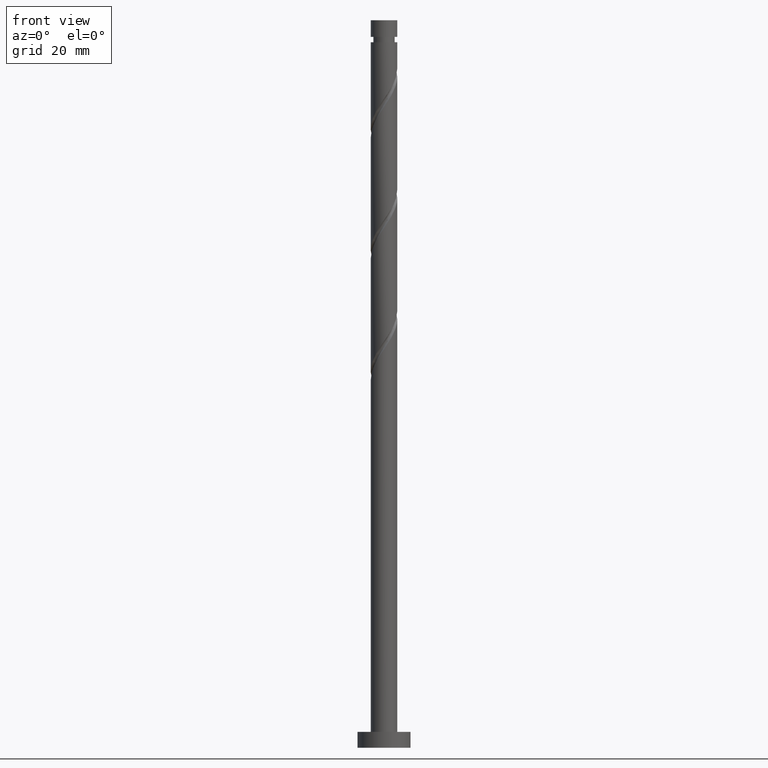
[diagram: clean part render]
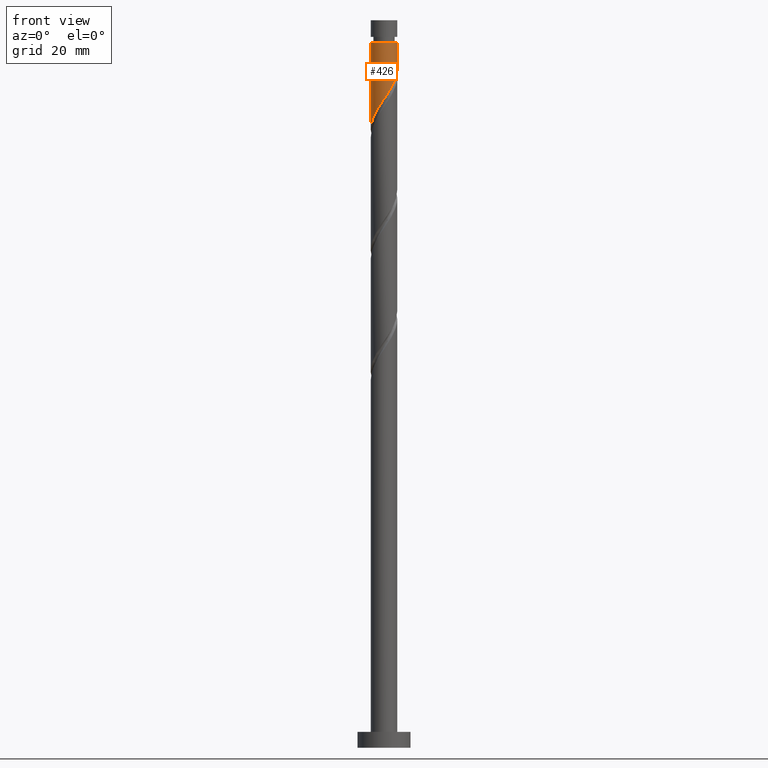
[diagram: same view with one face highlighted and labeled with its STEP entity id]
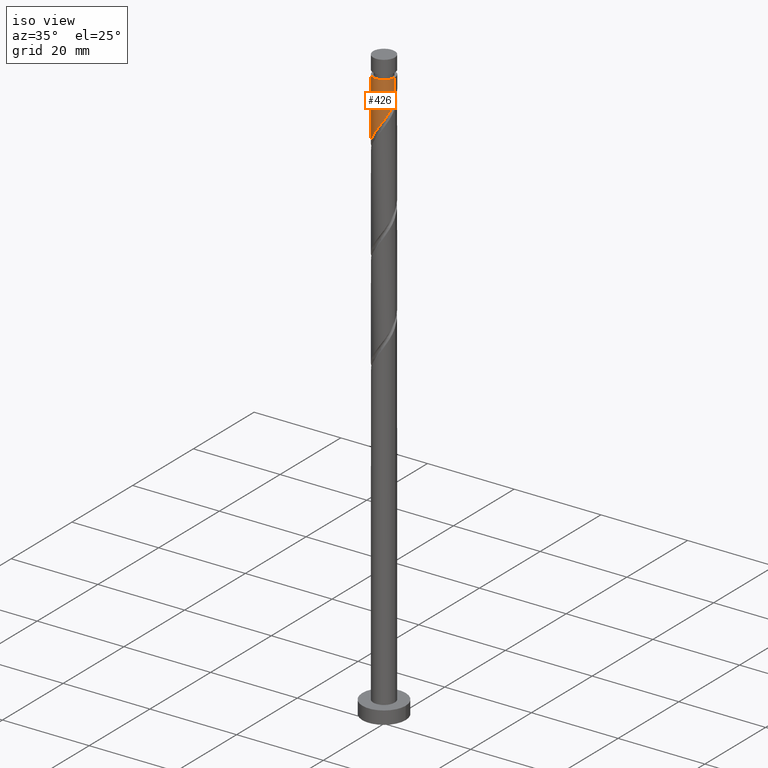
[diagram: same view with one face highlighted and labeled with its STEP entity id]
A machine part, front view. The second image highlights one B-rep face of the part: STEP entity #426.
A second angle (iso view) of the same face is appended — the face is thin or edge-on in the first view.
In plain terms, the highlighted cylindrical surface (edge-blend (fillet) strip) has radius 2.5 mm, axis along (-0, -0, -1).
Its self-contained STEP definition (entity closure, byte-faithful):
#71 = AXIS2_PLACEMENT_3D ( 'NONE', #365, #1051, #157 ) ;
#77 = CARTESIAN_POINT ( 'NONE',  ( 2.499999999999999112, 6.147172141114361151E-16, 128.3239659710337719 ) ) ;
#82 = CARTESIAN_POINT ( 'NONE',  ( -2.499999999999999112, -8.995861669923457122E-16, 116.8672993043671369 ) ) ;
#106 = CARTESIAN_POINT ( 'NONE',  ( -1.230236279064653937, -2.176354451295364978, 120.7187896538070930 ) ) ;
#108 = DIRECTION ( 'NONE',  ( -1.000000000000000000, 0.000000000000000000, 0.000000000000000000 ) ) ;
#125 =( BOUNDED_CURVE ( )  B_SPLINE_CURVE ( 2, ( #1196, #454, #849, #318, #937, #1418, #1546, #1326, #230, #478, #947, #463, #837, #973, #106, #721, #328, #712, #212, #1074, #583, #1081, #82 ),
 .UNSPECIFIED., .F., .T. ) 
 B_SPLINE_CURVE_WITH_KNOTS ( ( 3, 2, 2, 2, 2, 2, 2, 2, 2, 2, 2, 3 ),
 ( 0.3045322023138550827, 0.3125000000000000000, 0.3250000000000000111, 0.3375000000000000222, 0.3499999999999999778, 0.3624999999999999889, 0.3750000000000000000, 0.3875000000000000111, 0.4000000000000000222, 0.4124999999999999778, 0.4249999999999999889, 0.4295322023138550271 ),
 .UNSPECIFIED. ) 
 CURVE ( )  GEOMETRIC_REPRESENTATION_ITEM ( )  RATIONAL_B_SPLINE_CURVE ( ( 0.9039174447099376231, 0.9019565955404669211, 0.9090909090909153889, 0.8978984914501313419, 0.9090909090909153889, 0.8978984914501313419, 0.9090909090909153889, 0.8978984914501313419, 0.9090909090909153889, 0.8978984914501313419, 0.9090909090909153889, 0.8978984914501313419, 0.9090909090909153889, 0.8978984914501313419, 0.9090909090909153889, 0.8978984914501313419, 0.9090909090909153889, 0.8978984914501313419, 0.9090909090909153889, 0.8978984914501313419, 0.9090909090909153889, 0.9050328050005800318, 0.9039174447099378451 ) ) 
 REPRESENTATION_ITEM ( '' )  );
#157 = DIRECTION ( 'NONE',  ( -1.000000000000000000, 0.000000000000000000, 0.000000000000000000 ) ) ;
#212 = CARTESIAN_POINT ( 'NONE',  ( -2.274511107092398010, -1.037592995212142544, 118.4274563204737660 ) ) ;
#230 = CARTESIAN_POINT ( 'NONE',  ( 1.037592995212142544, -2.274511107092398010, 124.1557896538071049 ) ) ;
#280 = ORIENTED_EDGE ( 'NONE', *, *, #1290, .F. ) ;
#318 = CARTESIAN_POINT ( 'NONE',  ( 2.371204735821960785, -0.8855355973484247967, 127.0199563204738098 ) ) ;
#320 = ORIENTED_EDGE ( 'NONE', *, *, #523, .T. ) ;
#323 = CARTESIAN_POINT ( 'NONE',  ( -2.499999999999995115, 0.000000000000000000, 133.3211229871404555 ) ) ;
#328 = CARTESIAN_POINT ( 'NONE',  ( -1.842554741020973719, -1.689672165344841437, 119.5731229871404224 ) ) ;
#340 = VERTEX_POINT ( 'NONE', #1289 ) ;
#365 = CARTESIAN_POINT ( 'NONE',  ( 0.000000000000000000, 0.000000000000000000, 137.4799999999999898 ) ) ;
#426 = ADVANCED_FACE ( 'NONE', ( #748 ), #1462, .T. ) ;
#437 = LINE ( 'NONE', #670, #1073 ) ;
#454 = CARTESIAN_POINT ( 'NONE',  ( 2.500000000000000000, -0.2512594538148016365, 127.9562844268172199 ) ) ;
#463 = CARTESIAN_POINT ( 'NONE',  ( -0.1094518397581974167, -2.528795264178037794, 122.4372896538071132 ) ) ;
#478 = CARTESIAN_POINT ( 'NONE',  ( 0.6773458265033714953, -2.438849692923732881, 123.5829563204737980 ) ) ;
#523 = EDGE_CURVE ( 'NONE', #340, #970, #530, .T. ) ;
#530 = CIRCLE ( 'NONE', #1261, 2.499999999999995115 ) ;
#565 = DIRECTION ( 'NONE',  ( -0.000000000000000000, -0.000000000000000000, -1.000000000000000000 ) ) ;
#583 = CARTESIAN_POINT ( 'NONE',  ( -2.483822478550884671, -0.2839469933725872197, 117.2817896538071096 ) ) ;
#587 = VERTEX_POINT ( 'NONE', #77 ) ;
#589 = LINE ( 'NONE', #1090, #1143 ) ;
#622 = CARTESIAN_POINT ( 'NONE',  ( -2.499999999999999112, -8.995861669923457122E-16, 116.8672993043671369 ) ) ;
#670 = CARTESIAN_POINT ( 'NONE',  ( -2.500000000000000000, 0.000000000000000000, 137.4799999999999898 ) ) ;
#712 = CARTESIAN_POINT ( 'NONE',  ( -2.110172521261064027, -1.397840163920913703, 119.0002896538071013 ) ) ;
#721 = CARTESIAN_POINT ( 'NONE',  ( -1.574936960780884077, -1.981504166768769837, 120.1459563204737719 ) ) ;
#748 = FACE_OUTER_BOUND ( 'NONE', #960, .T. ) ;
#837 = CARTESIAN_POINT ( 'NONE',  ( -0.4974937185533110373, -2.449999999999998401, 121.8644563204737636 ) ) ;
#849 = CARTESIAN_POINT ( 'NONE',  ( 2.449999999999998401, -0.4974937185533111483, 127.5927896538071025 ) ) ;
#854 = DIRECTION ( 'NONE',  ( -0.000000000000000000, -0.000000000000000000, -1.000000000000000000 ) ) ;
#937 = CARTESIAN_POINT ( 'NONE',  ( 2.176354451295364978, -1.230236279064654381, 126.4471229871404461 ) ) ;
#947 = CARTESIAN_POINT ( 'NONE',  ( 0.2839469933725869422, -2.483822478550884671, 123.0101229871404342 ) ) ;
#960 = EDGE_LOOP ( 'NONE', ( #1325, #320, #1092, #280 ) ) ;
#970 = VERTEX_POINT ( 'NONE', #323 ) ;
#973 = CARTESIAN_POINT ( 'NONE',  ( -0.8855355973484246856, -2.371204735821960785, 121.2916229871404425 ) ) ;
#1051 = DIRECTION ( 'NONE',  ( -0.000000000000000000, -0.000000000000000000, -1.000000000000000000 ) ) ;
#1073 = VECTOR ( 'NONE', #1164, 1000.000000000000000 ) ;
#1074 = CARTESIAN_POINT ( 'NONE',  ( -2.438849692923733326, -0.6773458265033717174, 117.8546229871404449 ) ) ;
#1081 = CARTESIAN_POINT ( 'NONE',  ( -2.499999999999998224, -0.1424343436160854237, 117.0757311807208225 ) ) ;
#1090 = CARTESIAN_POINT ( 'NONE',  ( 2.500000000000000000, 3.061616997868383141E-16, 137.4799999999999898 ) ) ;
#1092 = ORIENTED_EDGE ( 'NONE', *, *, #1096, .T. ) ;
#1096 = EDGE_CURVE ( 'NONE', #970, #1570, #437, .T. ) ;
#1143 = VECTOR ( 'NONE', #854, 1000.000000000000000 ) ;
#1164 = DIRECTION ( 'NONE',  ( -0.000000000000000000, -0.000000000000000000, -1.000000000000000000 ) ) ;
#1167 = CARTESIAN_POINT ( 'NONE',  ( 0.000000000000000000, 0.000000000000000000, 133.3211229871404555 ) ) ;
#1196 = CARTESIAN_POINT ( 'NONE',  ( 2.499999999999999112, 6.147172141114361151E-16, 128.3239659710337719 ) ) ;
#1261 = AXIS2_PLACEMENT_3D ( 'NONE', #1167, #565, #108 ) ;
#1289 = CARTESIAN_POINT ( 'NONE',  ( 2.499999999999995115, 3.061616997868380183E-16, 133.3211229871404555 ) ) ;
#1290 = EDGE_CURVE ( 'NONE', #587, #1570, #125, .T. ) ;
#1320 = EDGE_CURVE ( 'NONE', #340, #587, #589, .T. ) ;
#1325 = ORIENTED_EDGE ( 'NONE', *, *, #1320, .F. ) ;
#1326 = CARTESIAN_POINT ( 'NONE',  ( 1.397840163920913259, -2.110172521261064027, 124.7286229871404544 ) ) ;
#1418 = CARTESIAN_POINT ( 'NONE',  ( 1.981504166768769837, -1.574936960780884299, 125.8742896538071534 ) ) ;
#1462 = CYLINDRICAL_SURFACE ( 'NONE', #71, 2.500000000000000000 ) ;
#1546 = CARTESIAN_POINT ( 'NONE',  ( 1.689672165344841437, -1.842554741020973719, 125.3014563204737613 ) ) ;
#1570 = VERTEX_POINT ( 'NONE', #622 ) ;